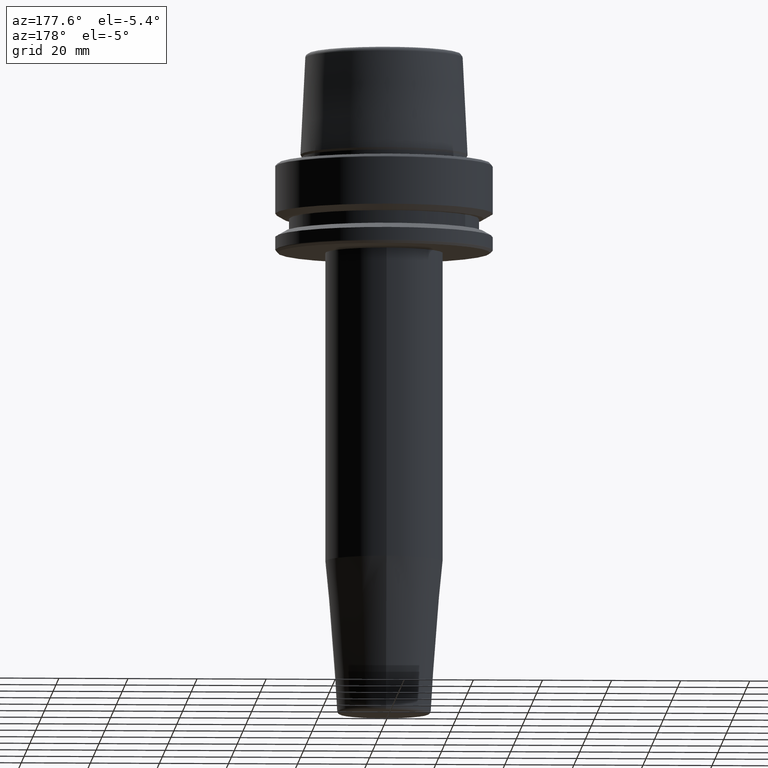
[diagram: clean part render]
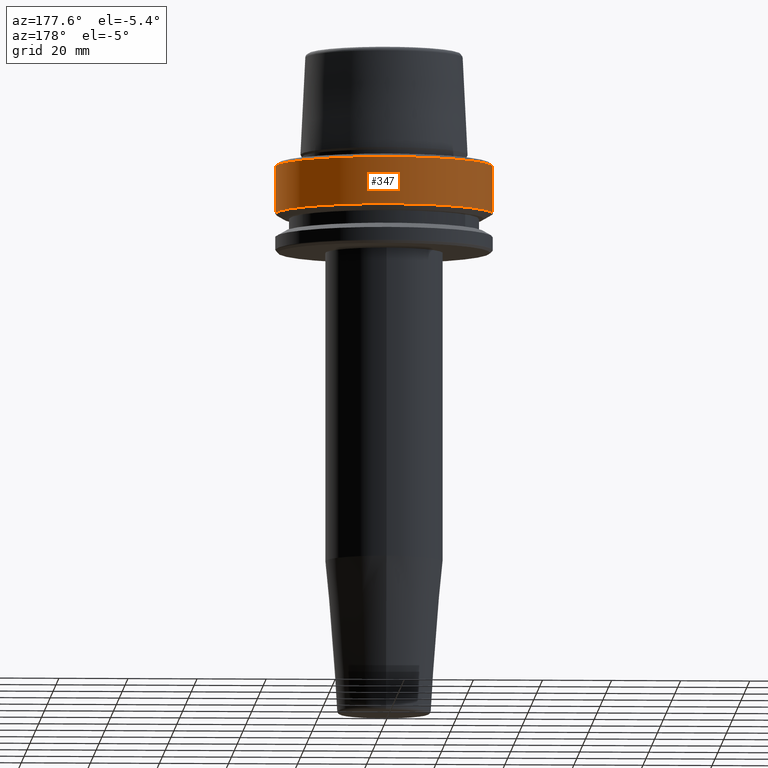
[diagram: same view with one face highlighted and labeled with its STEP entity id]
A machine part, auxiliary view. The second image highlights one B-rep face of the part: STEP entity #347.
In plain terms, the highlighted cylindrical surface (partial cylindrical patch) has radius 31.5 mm, axis along (-0, -0, 1).
Its self-contained STEP definition (entity closure, byte-faithful):
#20 = DIRECTION ( 'NONE',  ( 1.000000000000000000, 0.0000000000000000000, 0.0000000000000000000 ) ) ;
#37 = EDGE_CURVE ( 'NONE', #299, #928, #43, .T. ) ;
#43 = CIRCLE ( 'NONE', #505, 31.50000000000000000 ) ;
#72 = EDGE_CURVE ( 'NONE', #607, #544, #543, .T. ) ;
#86 = CARTESIAN_POINT ( 'NONE',  ( 0.0000000000000000000, 0.0000000000000000000, -14.62250092524070100 ) ) ;
#98 = EDGE_CURVE ( 'NONE', #299, #607, #1056, .T. ) ;
#113 = CARTESIAN_POINT ( 'NONE',  ( 31.50000000000000700, 0.0000000000000000000, -0.9656854249492363700 ) ) ;
#173 = VECTOR ( 'NONE', #569, 1000.000000000000000 ) ;
#182 = CARTESIAN_POINT ( 'NONE',  ( -31.50000000000000000, 3.857637417314162700E-015, -14.62250092524070100 ) ) ;
#186 = DIRECTION ( 'NONE',  ( 1.000000000000000000, 0.0000000000000000000, 0.0000000000000000000 ) ) ;
#193 = AXIS2_PLACEMENT_3D ( 'NONE', #613, #516, #20 ) ;
#210 = CARTESIAN_POINT ( 'NONE',  ( -31.50000000000000700, 3.857637417314163500E-015, -0.9656854249492363700 ) ) ;
#268 = ORIENTED_EDGE ( 'NONE', *, *, #72, .F. ) ;
#279 = VECTOR ( 'NONE', #600, 1000.000000000000000 ) ;
#299 = VERTEX_POINT ( 'NONE', #480 ) ;
#347 = ADVANCED_FACE ( 'NONE', ( #1156 ), #894, .T. ) ;
#480 = CARTESIAN_POINT ( 'NONE',  ( 31.50000000000000000, 0.0000000000000000000, -14.62250092524070100 ) ) ;
#505 = AXIS2_PLACEMENT_3D ( 'NONE', #86, #775, #186 ) ;
#516 = DIRECTION ( 'NONE',  ( -0.0000000000000000000, -0.0000000000000000000, 1.000000000000000000 ) ) ;
#543 = CIRCLE ( 'NONE', #950, 31.50000000000000700 ) ;
#544 = VERTEX_POINT ( 'NONE', #210 ) ;
#550 = EDGE_LOOP ( 'NONE', ( #1129, #868, #268, #1103 ) ) ;
#569 = DIRECTION ( 'NONE',  ( -0.0000000000000000000, -0.0000000000000000000, 1.000000000000000000 ) ) ;
#580 = DIRECTION ( 'NONE',  ( -0.0000000000000000000, -0.0000000000000000000, 1.000000000000000000 ) ) ;
#600 = DIRECTION ( 'NONE',  ( -0.0000000000000000000, -0.0000000000000000000, 1.000000000000000000 ) ) ;
#607 = VERTEX_POINT ( 'NONE', #113 ) ;
#613 = CARTESIAN_POINT ( 'NONE',  ( 0.0000000000000000000, 0.0000000000000000000, 78.96908074195309300 ) ) ;
#703 = CARTESIAN_POINT ( 'NONE',  ( 31.50000000000000000, 0.0000000000000000000, 78.96908074195309300 ) ) ;
#753 = EDGE_CURVE ( 'NONE', #928, #544, #1195, .T. ) ;
#775 = DIRECTION ( 'NONE',  ( -0.0000000000000000000, -0.0000000000000000000, 1.000000000000000000 ) ) ;
#868 = ORIENTED_EDGE ( 'NONE', *, *, #753, .T. ) ;
#894 = CYLINDRICAL_SURFACE ( 'NONE', #193, 31.50000000000000000 ) ;
#928 = VERTEX_POINT ( 'NONE', #182 ) ;
#950 = AXIS2_PLACEMENT_3D ( 'NONE', #1149, #580, #1076 ) ;
#1056 = LINE ( 'NONE', #703, #279 ) ;
#1076 = DIRECTION ( 'NONE',  ( 1.000000000000000000, 0.0000000000000000000, 0.0000000000000000000 ) ) ;
#1103 = ORIENTED_EDGE ( 'NONE', *, *, #98, .F. ) ;
#1129 = ORIENTED_EDGE ( 'NONE', *, *, #37, .T. ) ;
#1137 = CARTESIAN_POINT ( 'NONE',  ( -31.50000000000000000, 3.857637417314162700E-015, 78.96908074195309300 ) ) ;
#1149 = CARTESIAN_POINT ( 'NONE',  ( 0.0000000000000000000, 0.0000000000000000000, -0.9656854249492363700 ) ) ;
#1156 = FACE_OUTER_BOUND ( 'NONE', #550, .T. ) ;
#1195 = LINE ( 'NONE', #1137, #173 ) ;